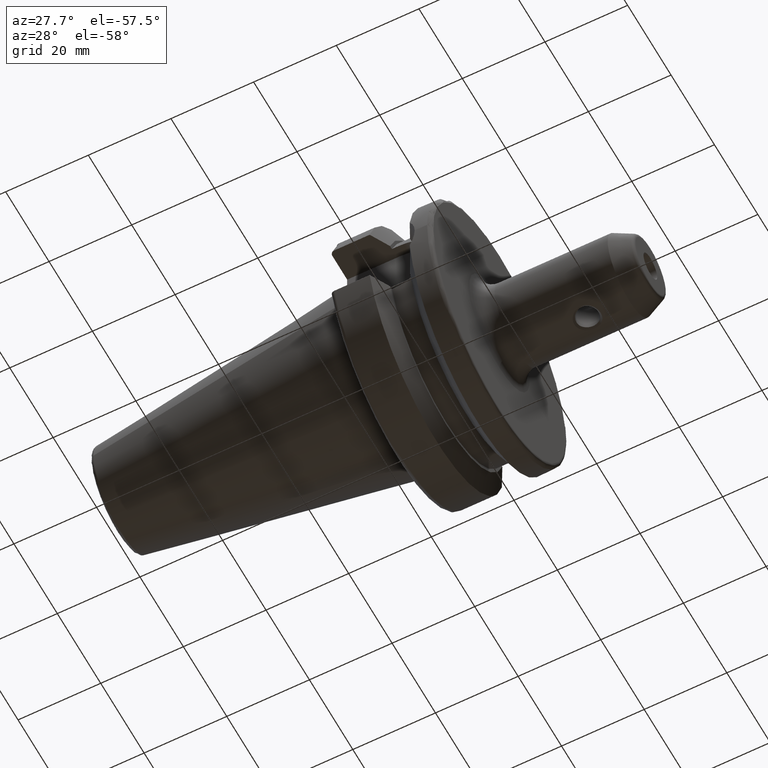
[diagram: clean part render]
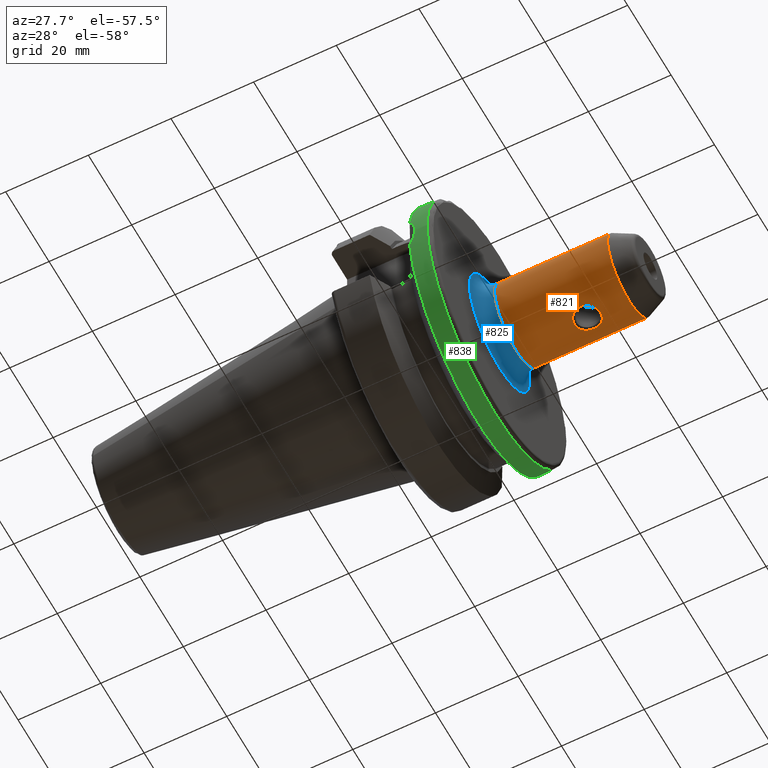
[diagram: same view with three faces highlighted in distinct colors, each labeled with its STEP entity id]
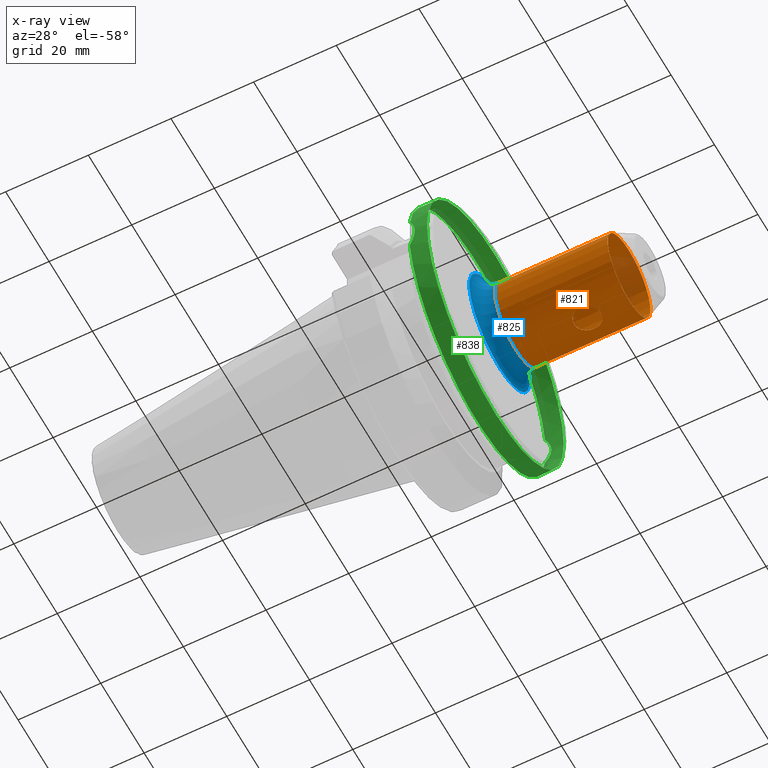
[diagram: x-ray of the same camera — body ghosted, the three highlighted faces saturated]
A machine part, auxiliary view with three faces highlighted in distinct colors.
The next image is the same camera in x-ray (body ghosted, the three faces saturated) — at least one of them is partly hidden behind the body in this view.
Their STEP definitions:

[orange] entity #821 — the highlighted cylindrical surface (bore or boss wall) has radius 9.906 mm, axis along (1, 0, 0).
#53=FACE_BOUND('',#186,.T.);
#60=CIRCLE('',#895,9.906);
#61=CIRCLE('',#896,9.906);
#62=CIRCLE('',#897,9.906);
#117=CYLINDRICAL_SURFACE('',#894,9.906);
#134=FACE_OUTER_BOUND('',#185,.T.);
#185=EDGE_LOOP('',(#573,#574,#575,#576,#577));
#186=EDGE_LOOP('',(#578));
#242=B_SPLINE_CURVE_WITH_KNOTS('',3,(#1405,#1406,#1407,#1408,#1409,#1410,
#1411,#1412,#1413,#1414,#1415,#1416,#1417,#1418,#1419,#1420,#1421,#1422,
#1423,#1424,#1425,#1426,#1427,#1428,#1429,#1430,#1431,#1432),
 .UNSPECIFIED.,.T.,.F.,(4,1,1,1,2,1,1,1,1,1,1,1,1,1,1,1,1,1,1,1,1,1,1,1,
4),(-2.84166634350941,-2.71988457485524,-2.65899369052815,-2.61332552728284,
-2.53721192187398,-2.47124417599834,-2.4052764301227,-2.30632481130924,
-2.27334093837142,-2.20737319249578,-2.14140544662014,-2.0754377007445,
-2.00946995486886,-1.94350220899322,-1.87753446311758,-1.7455989713663,
-1.67963122549066,-1.61366347961502,-1.56418767020829,-1.48172798786374,
-1.44874411492592,-1.4157602419881,-1.34979249611246,-1.28382475023682,
-1.21785700436118),.UNSPECIFIED.);
#262=LINE('',#1485,#310);
#310=VECTOR('',#1009,9.906);
#356=VERTEX_POINT('',#1374);
#360=VERTEX_POINT('',#1482);
#361=VERTEX_POINT('',#1484);
#362=VERTEX_POINT('',#1486);
#439=EDGE_CURVE('',#356,#356,#242,.T.);
#443=EDGE_CURVE('',#360,#360,#60,.T.);
#444=EDGE_CURVE('',#360,#361,#262,.T.);
#445=EDGE_CURVE('',#362,#361,#61,.T.);
#446=EDGE_CURVE('',#361,#362,#62,.T.);
#573=ORIENTED_EDGE('',*,*,#443,.F.);
#574=ORIENTED_EDGE('',*,*,#444,.T.);
#575=ORIENTED_EDGE('',*,*,#445,.F.);
#576=ORIENTED_EDGE('',*,*,#446,.F.);
#577=ORIENTED_EDGE('',*,*,#444,.F.);
#578=ORIENTED_EDGE('',*,*,#439,.F.);
#821=ADVANCED_FACE('',(#134,#53),#117,.T.);
#894=AXIS2_PLACEMENT_3D('',#1481,#1005,#1006);
#895=AXIS2_PLACEMENT_3D('',#1483,#1007,#1008);
#896=AXIS2_PLACEMENT_3D('',#1487,#1010,#1011);
#897=AXIS2_PLACEMENT_3D('',#1488,#1012,#1013);
#1005=DIRECTION('center_axis',(1.,0.,0.));
#1006=DIRECTION('ref_axis',(0.,0.,-1.));
#1007=DIRECTION('center_axis',(1.,0.,0.));
#1008=DIRECTION('ref_axis',(0.,0.,-1.));
#1009=DIRECTION('',(-1.,0.,0.));
#1010=DIRECTION('center_axis',(-1.,0.,0.));
#1011=DIRECTION('ref_axis',(0.,-1.22464679914735E-16,1.));
#1012=DIRECTION('center_axis',(-1.,0.,0.));
#1013=DIRECTION('ref_axis',(0.,-1.22464679914735E-16,1.));
#1374=CARTESIAN_POINT('',(45.1203,-2.77555756156289E-16,-9.906));
#1405=CARTESIAN_POINT('Ctrl Pts',(45.1203,-2.77555756156289E-16,-9.906));
#1406=CARTESIAN_POINT('Ctrl Pts',(45.1203,0.481682638342222,-9.906));
#1407=CARTESIAN_POINT('Ctrl Pts',(45.2997293881562,1.25607593808945,-9.84491463939882));
#1408=CARTESIAN_POINT('Ctrl Pts',(45.8346356404327,2.03339109698777,-9.69814440463938));
#1409=CARTESIAN_POINT('Ctrl Pts',(46.3429206671708,2.53015136723827,-9.58112867801677));
#1410=CARTESIAN_POINT('Ctrl Pts',(46.7825422043943,2.7979834181301,-9.50305010890734));
#1411=CARTESIAN_POINT('Ctrl Pts',(47.330285038314,3.02227795758501,-9.4339591601484));
#1412=CARTESIAN_POINT('Ctrl Pts',(47.8743522852952,3.16276962438012,-9.38752868166184));
#1413=CARTESIAN_POINT('Ctrl Pts',(48.7987520419224,3.17207748939595,-9.38385699385809));
#1414=CARTESIAN_POINT('Ctrl Pts',(49.6151945678548,2.92247913608253,-9.46840801889387));
#1415=CARTESIAN_POINT('Ctrl Pts',(50.3045171235886,2.48165480388144,-9.59246771015625));
#1416=CARTESIAN_POINT('Ctrl Pts',(50.7735042525313,2.04375703802701,-9.69916370381932));
#1417=CARTESIAN_POINT('Ctrl Pts',(51.218994748441,1.35310439467011,-9.82366328750186));
#1418=CARTESIAN_POINT('Ctrl Pts',(51.4656687050607,0.547186932481485,-9.90123009416494));
#1419=CARTESIAN_POINT('Ctrl Pts',(51.5030069781915,-0.241532239952658,-9.91375497712477));
#1420=CARTESIAN_POINT('Ctrl Pts',(51.3402850990408,-1.05313391604248,-9.86051529394848));
#1421=CARTESIAN_POINT('Ctrl Pts',(50.8349919001614,-2.04242731220046,-9.71284065510318));
#1422=CARTESIAN_POINT('Ctrl Pts',(50.0493299675732,-2.73816315627836,-9.52458088555112));
#1423=CARTESIAN_POINT('Ctrl Pts',(48.9788405416683,-3.12250070722127,-9.40157617125727));
#1424=CARTESIAN_POINT('Ctrl Pts',(48.2470036088229,-3.18033120052257,-9.38129639079817));
#1425=CARTESIAN_POINT('Ctrl Pts',(47.4383835583104,-3.07752503450136,-9.41623445730751));
#1426=CARTESIAN_POINT('Ctrl Pts',(46.7826448857526,-2.81244649302015,-9.50119903937541));
#1427=CARTESIAN_POINT('Ctrl Pts',(46.2865948170437,-2.46074895028102,-9.59654618771114));
#1428=CARTESIAN_POINT('Ctrl Pts',(45.9067184727574,-2.11554287225917,-9.68053995454299));
#1429=CARTESIAN_POINT('Ctrl Pts',(45.5004912575929,-1.57981543465458,-9.7882620118427));
#1430=CARTESIAN_POINT('Ctrl Pts',(45.1861691696804,-0.80438505421353,-9.88440998474974));
#1431=CARTESIAN_POINT('Ctrl Pts',(45.1203,-0.260921796669711,-9.906));
#1432=CARTESIAN_POINT('Ctrl Pts',(45.1203,2.08166817117217E-16,-9.906));
#1481=CARTESIAN_POINT('Origin',(42.670158174627,0.,0.));
#1482=CARTESIAN_POINT('',(58.340316349254,-1.21313511923537E-15,9.906));
#1483=CARTESIAN_POINT('Origin',(58.340316349254,0.,0.));
#1484=CARTESIAN_POINT('',(31.,-1.21313511923537E-15,9.906));
#1485=CARTESIAN_POINT('',(42.670158174627,-1.21313511923537E-15,9.906));
#1486=CARTESIAN_POINT('',(31.,0.,-9.906));
#1487=CARTESIAN_POINT('Origin',(31.,0.,0.));
#1488=CARTESIAN_POINT('Origin',(31.,0.,0.));

[blue] entity #825 — the highlighted toroidal blend (fillet) surface has major radius 13.906 mm and minor (blend) radius 4 mm.
#46=TOROIDAL_SURFACE('',#905,13.906,4.);
#61=CIRCLE('',#896,9.906);
#62=CIRCLE('',#897,9.906);
#67=CIRCLE('',#906,4.);
#68=CIRCLE('',#907,13.906);
#138=FACE_OUTER_BOUND('',#191,.T.);
#191=EDGE_LOOP('',(#589,#590,#591,#592,#593));
#361=VERTEX_POINT('',#1484);
#362=VERTEX_POINT('',#1486);
#366=VERTEX_POINT('',#1501);
#445=EDGE_CURVE('',#362,#361,#61,.T.);
#446=EDGE_CURVE('',#361,#362,#62,.T.);
#452=EDGE_CURVE('',#362,#366,#67,.T.);
#453=EDGE_CURVE('',#366,#366,#68,.T.);
#589=ORIENTED_EDGE('',*,*,#445,.T.);
#590=ORIENTED_EDGE('',*,*,#446,.T.);
#591=ORIENTED_EDGE('',*,*,#452,.T.);
#592=ORIENTED_EDGE('',*,*,#453,.T.);
#593=ORIENTED_EDGE('',*,*,#452,.F.);
#825=ADVANCED_FACE('',(#138),#46,.F.);
#896=AXIS2_PLACEMENT_3D('',#1487,#1010,#1011);
#897=AXIS2_PLACEMENT_3D('',#1488,#1012,#1013);
#905=AXIS2_PLACEMENT_3D('',#1500,#1029,#1030);
#906=AXIS2_PLACEMENT_3D('',#1502,#1031,#1032);
#907=AXIS2_PLACEMENT_3D('',#1503,#1033,#1034);
#1010=DIRECTION('center_axis',(-1.,0.,0.));
#1011=DIRECTION('ref_axis',(0.,-1.22464679914735E-16,1.));
#1012=DIRECTION('center_axis',(-1.,0.,0.));
#1013=DIRECTION('ref_axis',(0.,-1.22464679914735E-16,1.));
#1029=DIRECTION('center_axis',(-1.,0.,0.));
#1030=DIRECTION('ref_axis',(0.,0.,1.));
#1031=DIRECTION('center_axis',(0.,-1.,1.22464679914735E-16));
#1032=DIRECTION('ref_axis',(0.,-1.22464679914735E-16,-1.));
#1033=DIRECTION('center_axis',(1.,0.,0.));
#1034=DIRECTION('ref_axis',(0.,-1.22464679914735E-16,1.));
#1484=CARTESIAN_POINT('',(31.,-1.21313511923537E-15,9.906));
#1486=CARTESIAN_POINT('',(31.,0.,-9.906));
#1487=CARTESIAN_POINT('Origin',(31.,0.,0.));
#1488=CARTESIAN_POINT('Origin',(31.,0.,0.));
#1500=CARTESIAN_POINT('Origin',(31.,0.,0.));
#1501=CARTESIAN_POINT('',(27.,3.40598767778862E-15,-13.906));
#1502=CARTESIAN_POINT('Origin',(31.,-1.70299383889431E-15,-13.906));
#1503=CARTESIAN_POINT('Origin',(27.,0.,0.));

[green] entity #838 — the highlighted cylindrical surface (bore or boss wall) has radius 31.5 mm, axis along (1, 0, 0).
#79=CIRCLE('',#931,31.5);
#80=CIRCLE('',#932,31.5);
#81=CIRCLE('',#933,31.5);
#82=CIRCLE('',#934,31.5);
#123=CYLINDRICAL_SURFACE('',#930,31.5);
#151=FACE_OUTER_BOUND('',#206,.T.);
#206=EDGE_LOOP('',(#659,#660,#661,#662,#663,#664,#665,#666,#667));
#247=B_SPLINE_CURVE_WITH_KNOTS('',3,(#1556,#1557,#1558,#1559,#1560,#1561),
 .UNSPECIFIED.,.F.,.F.,(4,2,4),(1.21877751840372,1.52344857393281,1.67526011710938),
 .UNSPECIFIED.);
#248=B_SPLINE_CURVE_WITH_KNOTS('',3,(#1563,#1564,#1565,#1566,#1567,#1568),
 .UNSPECIFIED.,.F.,.F.,(4,2,4),(0.762294919698049,0.914106462874623,1.21877751840372),
 .UNSPECIFIED.);
#253=B_SPLINE_CURVE_WITH_KNOTS('',3,(#1650,#1651,#1652,#1653,#1654,#1655,
#1656,#1657,#1658,#1659),.UNSPECIFIED.,.F.,.F.,(4,2,2,2,4),(3.19984995650548,
3.35166149968205,3.65633255521115,3.96100361074024,4.11281515391681),
 .UNSPECIFIED.);
#286=LINE('',#1646,#334);
#334=VECTOR('',#1105,31.5);
#379=VERTEX_POINT('',#1548);
#380=VERTEX_POINT('',#1555);
#381=VERTEX_POINT('',#1562);
#399=VERTEX_POINT('',#1643);
#400=VERTEX_POINT('',#1644);
#401=VERTEX_POINT('',#1647);
#402=VERTEX_POINT('',#1649);
#473=EDGE_CURVE('',#380,#379,#247,.T.);
#474=EDGE_CURVE('',#381,#380,#248,.T.);
#496=EDGE_CURVE('',#399,#400,#79,.T.);
#497=EDGE_CURVE('',#399,#380,#286,.T.);
#498=EDGE_CURVE('',#379,#401,#80,.T.);
#499=EDGE_CURVE('',#401,#402,#253,.T.);
#500=EDGE_CURVE('',#402,#381,#81,.T.);
#501=EDGE_CURVE('',#400,#399,#82,.T.);
#659=ORIENTED_EDGE('',*,*,#496,.F.);
#660=ORIENTED_EDGE('',*,*,#497,.T.);
#661=ORIENTED_EDGE('',*,*,#473,.T.);
#662=ORIENTED_EDGE('',*,*,#498,.T.);
#663=ORIENTED_EDGE('',*,*,#499,.T.);
#664=ORIENTED_EDGE('',*,*,#500,.T.);
#665=ORIENTED_EDGE('',*,*,#474,.T.);
#666=ORIENTED_EDGE('',*,*,#497,.F.);
#667=ORIENTED_EDGE('',*,*,#501,.F.);
#838=ADVANCED_FACE('',(#151),#123,.T.);
#930=AXIS2_PLACEMENT_3D('',#1642,#1101,#1102);
#931=AXIS2_PLACEMENT_3D('',#1645,#1103,#1104);
#932=AXIS2_PLACEMENT_3D('',#1648,#1106,#1107);
#933=AXIS2_PLACEMENT_3D('',#1660,#1108,#1109);
#934=AXIS2_PLACEMENT_3D('',#1661,#1110,#1111);
#1101=DIRECTION('center_axis',(1.,0.,0.));
#1102=DIRECTION('ref_axis',(0.,1.,0.));
#1103=DIRECTION('center_axis',(1.,0.,0.));
#1104=DIRECTION('ref_axis',(0.,0.,-1.));
#1105=DIRECTION('',(-1.,0.,0.));
#1106=DIRECTION('center_axis',(1.,0.,0.));
#1107=DIRECTION('ref_axis',(0.,0.,-1.));
#1108=DIRECTION('center_axis',(1.,0.,0.));
#1109=DIRECTION('ref_axis',(0.,0.,-1.));
#1110=DIRECTION('center_axis',(1.,0.,0.));
#1111=DIRECTION('ref_axis',(0.,0.,-1.));
#1548=CARTESIAN_POINT('',(21.6309636926618,-31.1782420264945,-4.49079326370462));
#1555=CARTESIAN_POINT('',(23.,-31.5,-2.34515234289152E-15));
#1556=CARTESIAN_POINT('Ctrl Pts',(23.,-31.5,-1.11022302462516E-15));
#1557=CARTESIAN_POINT('Ctrl Pts',(23.,-31.5,-1.01557018509698));
#1558=CARTESIAN_POINT('Ctrl Pts',(22.7961189876535,-31.445974204441,-2.09580170425552));
#1559=CARTESIAN_POINT('Ctrl Pts',(22.1796133812044,-31.2997625705024,-3.5806535819887));
#1560=CARTESIAN_POINT('Ctrl Pts',(21.92482980253,-31.2412125047166,-4.05360796141052));
#1561=CARTESIAN_POINT('Ctrl Pts',(21.6309636926618,-31.1782420264945,-4.49079326370462));
#1562=CARTESIAN_POINT('',(21.6309636926618,-31.1782420264945,4.49079326370462));
#1563=CARTESIAN_POINT('Ctrl Pts',(21.6309636926618,-31.1782420264945,4.49079326370462));
#1564=CARTESIAN_POINT('Ctrl Pts',(21.92482980253,-31.2412125047166,4.05360796141052));
#1565=CARTESIAN_POINT('Ctrl Pts',(22.1796133812044,-31.2997625705024,3.5806535819887));
#1566=CARTESIAN_POINT('Ctrl Pts',(22.7961189876535,-31.445974204441,2.09580170425552));
#1567=CARTESIAN_POINT('Ctrl Pts',(23.,-31.5,1.01557018509698));
#1568=CARTESIAN_POINT('Ctrl Pts',(23.,-31.5,-1.11022302462516E-15));
#1642=CARTESIAN_POINT('Origin',(23.8154818463309,0.,0.));
#1643=CARTESIAN_POINT('',(26.,-31.5,-3.85763741731416E-15));
#1644=CARTESIAN_POINT('',(26.,-3.85763741731416E-15,31.5));
#1645=CARTESIAN_POINT('Origin',(26.,0.,0.));
#1646=CARTESIAN_POINT('',(23.8154818463309,-31.5,-3.85763741731416E-15));
#1647=CARTESIAN_POINT('',(21.6309636926618,31.1782420264945,-4.49079326370462));
#1648=CARTESIAN_POINT('Origin',(21.6309636926618,0.,0.));
#1649=CARTESIAN_POINT('',(21.6309636926618,31.1782420264945,4.49079326370462));
#1650=CARTESIAN_POINT('Ctrl Pts',(21.6309636926618,31.1782420264945,-4.49079326370462));
#1651=CARTESIAN_POINT('Ctrl Pts',(21.92482980253,31.2412125047166,-4.05360796141052));
#1652=CARTESIAN_POINT('Ctrl Pts',(22.1796133812043,31.2997625705024,-3.5806535819887));
#1653=CARTESIAN_POINT('Ctrl Pts',(22.7961189876535,31.445974204441,-2.09580170425552));
#1654=CARTESIAN_POINT('Ctrl Pts',(23.,31.5,-1.01557018509698));
#1655=CARTESIAN_POINT('Ctrl Pts',(23.,31.5,1.01557018509698));
#1656=CARTESIAN_POINT('Ctrl Pts',(22.7961189876535,31.445974204441,2.09580170425552));
#1657=CARTESIAN_POINT('Ctrl Pts',(22.1796133812044,31.2997625705024,3.5806535819887));
#1658=CARTESIAN_POINT('Ctrl Pts',(21.92482980253,31.2412125047166,4.05360796141052));
#1659=CARTESIAN_POINT('Ctrl Pts',(21.6309636926618,31.1782420264945,4.49079326370462));
#1660=CARTESIAN_POINT('Origin',(21.6309636926618,0.,0.));
#1661=CARTESIAN_POINT('Origin',(26.,0.,0.));